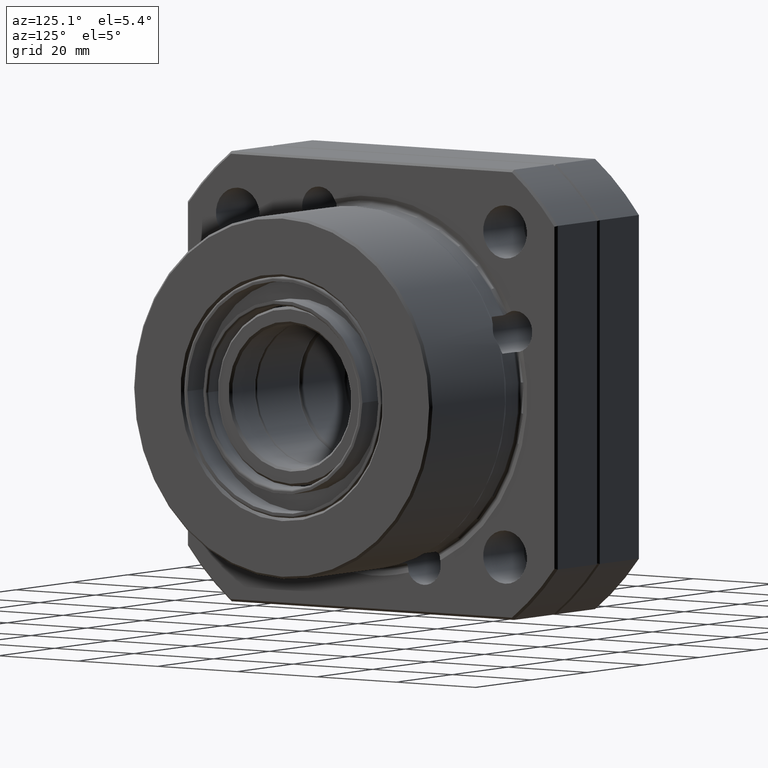
[diagram: clean part render]
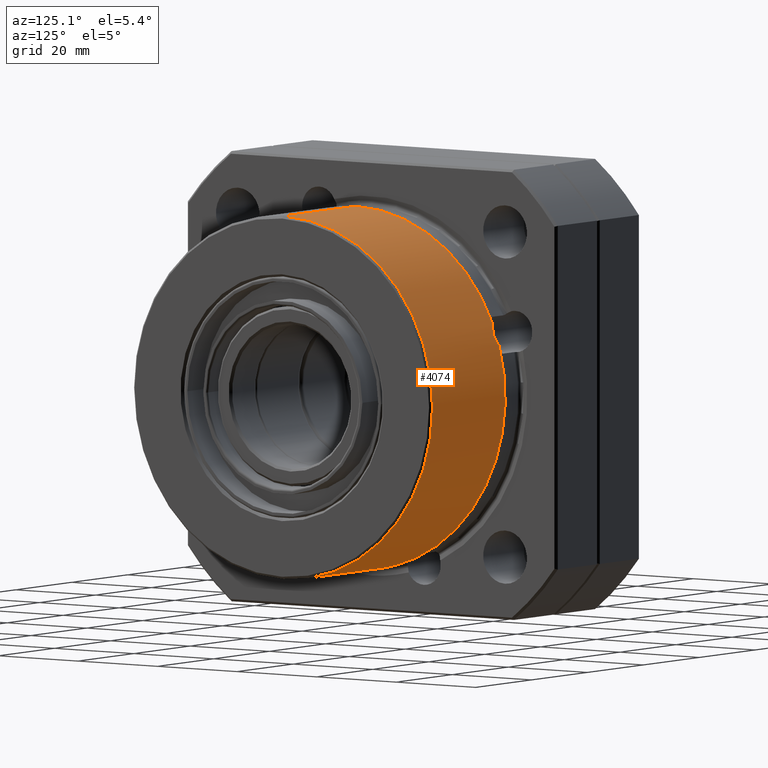
[diagram: same view with one face highlighted and labeled with its STEP entity id]
A machine part, auxiliary view. The second image highlights one B-rep face of the part: STEP entity #4074.
In plain terms, the highlighted cylindrical surface (partial cylindrical patch) has radius 37.5 mm, axis along (-1, -0, -0).
Its self-contained STEP definition (entity closure, byte-faithful):
#171 = VERTEX_POINT ( 'NONE', #4512 ) ;
#615 = EDGE_CURVE ( 'NONE', #616, #171, #6572, .T. ) ;
#616 = VERTEX_POINT ( 'NONE', #6627 ) ;
#926 = EDGE_CURVE ( 'NONE', #951, #958, #7631, .T. ) ;
#951 = VERTEX_POINT ( 'NONE', #7650 ) ;
#953 = EDGE_CURVE ( 'NONE', #616, #951, #7715, .T. ) ;
#954 = ORIENTED_EDGE ( 'NONE', *, *, #953, .F. ) ;
#957 = EDGE_CURVE ( 'NONE', #959, #958, #7703, .T. ) ;
#958 = VERTEX_POINT ( 'NONE', #7702 ) ;
#959 = VERTEX_POINT ( 'NONE', #7705 ) ;
#960 = ORIENTED_EDGE ( 'NONE', *, *, #957, .T. ) ;
#961 = ORIENTED_EDGE ( 'NONE', *, *, #926, .F. ) ;
#962 = ORIENTED_EDGE ( 'NONE', *, *, #964, .F. ) ;
#963 = ORIENTED_EDGE ( 'NONE', *, *, #3936, .T. ) ;
#964 = EDGE_CURVE ( 'NONE', #959, #3937, #7701, .T. ) ;
#965 = ORIENTED_EDGE ( 'NONE', *, *, #967, .T. ) ;
#966 = VERTEX_POINT ( 'NONE', #7743 ) ;
#967 = EDGE_CURVE ( 'NONE', #966, #4018, #7740, .T. ) ;
#3936 = EDGE_CURVE ( 'NONE', #4018, #3937, #13127, .T. ) ;
#3937 = VERTEX_POINT ( 'NONE', #13126 ) ;
#4018 = VERTEX_POINT ( 'NONE', #13284 ) ;
#4069 = EDGE_CURVE ( 'NONE', #966, #4071, #13370, .T. ) ;
#4070 = ORIENTED_EDGE ( 'NONE', *, *, #4069, .F. ) ;
#4071 = VERTEX_POINT ( 'NONE', #13365 ) ;
#4074 = ADVANCED_FACE ( 'NONE', ( #13361 ), #13364, .T. ) ;
#4085 = ORIENTED_EDGE ( 'NONE', *, *, #615, .T. ) ;
#4094 = ORIENTED_EDGE ( 'NONE', *, *, #4095, .T. ) ;
#4095 = EDGE_CURVE ( 'NONE', #171, #4071, #13438, .T. ) ;
#4102 = EDGE_LOOP ( 'NONE', ( #4085, #4094, #4070, #965, #963, #962, #960, #961, #954 ) ) ;
#4512 = CARTESIAN_POINT ( 'NONE',  ( 46.50000000000000000, 4.592273826833913900E-015, -37.50000000000000000 ) ) ;
#6572 = CIRCLE ( 'NONE', #6631, 37.50000000000000000 ) ;
#6627 = CARTESIAN_POINT ( 'NONE',  ( 46.50000000000000000, 0.0000000000000000000, 37.50000000000000000 ) ) ;
#6628 = DIRECTION ( 'NONE',  ( 0.0000000000000000000, 0.0000000000000000000, 1.000000000000000000 ) ) ;
#6629 = DIRECTION ( 'NONE',  ( -1.000000000000000000, -0.0000000000000000000, -0.0000000000000000000 ) ) ;
#6630 = CARTESIAN_POINT ( 'NONE',  ( 46.50000000000000000, 0.0000000000000000000, 0.0000000000000000000 ) ) ;
#6631 = AXIS2_PLACEMENT_3D ( 'NONE', #6630, #6629, #6628 ) ;
#7627 = DIRECTION ( 'NONE',  ( 0.0000000000000000000, 0.0000000000000000000, 1.000000000000000000 ) ) ;
#7628 = DIRECTION ( 'NONE',  ( -1.000000000000000000, -0.0000000000000000000, -0.0000000000000000000 ) ) ;
#7629 = CARTESIAN_POINT ( 'NONE',  ( 20.50000000000000400, 0.0000000000000000000, 0.0000000000000000000 ) ) ;
#7630 = AXIS2_PLACEMENT_3D ( 'NONE', #7629, #7628, #7627 ) ;
#7631 = CIRCLE ( 'NONE', #7630, 37.50000000000000000 ) ;
#7650 = CARTESIAN_POINT ( 'NONE',  ( 20.50000000000000400, 0.0000000000000000000, 37.50000000000000000 ) ) ;
#7683 = CARTESIAN_POINT ( 'NONE',  ( 20.50000000000129000, 34.36458577481649000, 15.01083756907921300 ) ) ;
#7684 = CARTESIAN_POINT ( 'NONE',  ( 20.70866283998751100, 34.51342734567651900, 14.67009183086581500 ) ) ;
#7685 = CARTESIAN_POINT ( 'NONE',  ( 20.91458920254795100, 34.65817090286548600, 14.32512983484525800 ) ) ;
#7686 = CARTESIAN_POINT ( 'NONE',  ( 21.18809316770768100, 34.87322613068326400, 13.78931245630402500 ) ) ;
#7687 = CARTESIAN_POINT ( 'NONE',  ( 21.27308730741152600, 34.94439532060203400, 13.60808046859218300 ) ) ;
#7688 = CARTESIAN_POINT ( 'NONE',  ( 21.37258735539135700, 35.05258107483619800, 13.32579133044572300 ) ) ;
#7689 = CARTESIAN_POINT ( 'NONE',  ( 21.40086775979204600, 35.08890802344230800, 13.22987814269311400 ) ) ;
#7690 = CARTESIAN_POINT ( 'NONE',  ( 21.44110858373306200, 35.16283063051298500, 13.03213274939910200 ) ) ;
#7691 = CARTESIAN_POINT ( 'NONE',  ( 21.45237518697612000, 35.19997776070658100, 12.93146762763182200 ) ) ;
#7692 = CARTESIAN_POINT ( 'NONE',  ( 21.45360449472478600, 35.30904804700194400, 12.63195485463021800 ) ) ;
#7693 = CARTESIAN_POINT ( 'NONE',  ( 21.40909280003535600, 35.38041791378176300, 12.43049995282427700 ) ) ;
#7694 = CARTESIAN_POINT ( 'NONE',  ( 21.27697833555198400, 35.51306655651202200, 12.04630252748786200 ) ) ;
#7695 = CARTESIAN_POINT ( 'NONE',  ( 21.19141158364530900, 35.57571110976348900, 11.85986297216955900 ) ) ;
#7696 = CARTESIAN_POINT ( 'NONE',  ( 20.91648679567774800, 35.75676013584698200, 11.30727143582630000 ) ) ;
#7697 = CARTESIAN_POINT ( 'NONE',  ( 20.70977599080054100, 35.86801230888024600, 10.94876402062302400 ) ) ;
#7698 = CARTESIAN_POINT ( 'NONE',  ( 20.50000000000000400, 35.97358037330569400, 10.59016124170520700 ) ) ;
#7699 = DIRECTION ( 'NONE',  ( -1.000000000000000000, -0.0000000000000000000, -0.0000000000000000000 ) ) ;
#7700 = AXIS2_PLACEMENT_3D ( 'NONE', #7704, #7699, #7744 ) ;
#7701 = CIRCLE ( 'NONE', #7700, 37.50000000000000000 ) ;
#7702 = CARTESIAN_POINT ( 'NONE',  ( 20.50000000000129000, 34.36458577481649000, 15.01083756907921300 ) ) ;
#7703 = B_SPLINE_CURVE_WITH_KNOTS ( 'NONE', 3,
 ( #7698, #7697, #7696, #7695, #7694, #7693, #7692, #7691, #7690, #7689, #7688, #7687, #7686, #7685, #7684, #7683 ),
 .UNSPECIFIED., .F., .F.,
 ( 4, 2, 2, 2, 2, 2, 2, 4 ),
 ( 4.084570154170579200E-007, 0.001285686829622205400, 0.001928326015925599600, 0.002570965202228994100, 0.002892284795380685100, 0.003213604388532376100, 0.003856243574835772800, 0.005141521947442563200 ),
 .UNSPECIFIED. ) ;
#7704 = CARTESIAN_POINT ( 'NONE',  ( 20.50000000000000400, 0.0000000000000000000, 0.0000000000000000000 ) ) ;
#7705 = CARTESIAN_POINT ( 'NONE',  ( 20.50000000000000400, 35.97358037330569400, 10.59016124170520700 ) ) ;
#7712 = DIRECTION ( 'NONE',  ( -1.000000000000000000, -0.0000000000000000000, -0.0000000000000000000 ) ) ;
#7713 = VECTOR ( 'NONE', #7712, 1000.000000000000000 ) ;
#7714 = CARTESIAN_POINT ( 'NONE',  ( -94.46891865289678900, 0.0000000000000000000, 37.50000000000000000 ) ) ;
#7715 = LINE ( 'NONE', #7714, #7713 ) ;
#7726 = CARTESIAN_POINT ( 'NONE',  ( 21.41310165367746200, 13.16777551803804500, -35.11210173012373300 ) ) ;
#7727 = CARTESIAN_POINT ( 'NONE',  ( 21.43832643169938000, 13.05583223896659500, -35.15408281063253100 ) ) ;
#7728 = CARTESIAN_POINT ( 'NONE',  ( 21.45271358265340200, 12.94066770323013000, -35.19664477440259300 ) ) ;
#7729 = CARTESIAN_POINT ( 'NONE',  ( 21.45287967961885300, 12.71293099737503800, -35.27954179743390700 ) ) ;
#7730 = CARTESIAN_POINT ( 'NONE',  ( 21.43893194118013700, 12.59880521844505600, -35.32045549319110500 ) ) ;
#7731 = CARTESIAN_POINT ( 'NONE',  ( 21.36335211630939700, 12.25852995236195200, -35.44060270540406100 ) ) ;
#7732 = CARTESIAN_POINT ( 'NONE',  ( 21.27442164516757800, 12.04373218240587900, -35.51405953822411700 ) ) ;
#7733 = CARTESIAN_POINT ( 'NONE',  ( 21.07600401011671200, 11.61974479954470100, -35.65503387404787400 ) ) ;
#7734 = CARTESIAN_POINT ( 'NONE',  ( 20.96543641844720100, 11.41198798997152000, -35.72202740163084700 ) ) ;
#7735 = CARTESIAN_POINT ( 'NONE',  ( 20.73755905960550500, 10.99948080928652900, -35.85119431054224700 ) ) ;
#7736 = CARTESIAN_POINT ( 'NONE',  ( 20.61963032375981100, 10.79466398951427000, -35.91337738402313600 ) ) ;
#7737 = CARTESIAN_POINT ( 'NONE',  ( 20.50000000000000400, 10.59016124170508500, -35.97358037330573000 ) ) ;
#7740 = B_SPLINE_CURVE_WITH_KNOTS ( 'NONE', 3,
 ( #7737, #7736, #7735, #7734, #7733, #7732, #7731, #7730, #7729, #7728, #7727, #7726 ),
 .UNSPECIFIED., .F., .F.,
 ( 4, 2, 2, 2, 2, 4 ),
 ( 4.084570144749889900E-007, 0.0007333725452767203000, 0.001466336633538965600, 0.002199300721801210800, 0.002565782765932330500, 0.002932264810063450700 ),
 .UNSPECIFIED. ) ;
#7743 = CARTESIAN_POINT ( 'NONE',  ( 20.50000000000000400, 10.59016124170508500, -35.97358037330573000 ) ) ;
#7744 = DIRECTION ( 'NONE',  ( 0.0000000000000000000, 0.0000000000000000000, 1.000000000000000000 ) ) ;
#13117 = CARTESIAN_POINT ( 'NONE',  ( 20.50000000000000400, 15.01083756908119300, -34.36458577481563000 ) ) ;
#13118 = CARTESIAN_POINT ( 'NONE',  ( 20.67933464001684700, 14.71798468591425800, -34.49250720793465800 ) ) ;
#13119 = CARTESIAN_POINT ( 'NONE',  ( 20.85568882383209300, 14.42210868362820100, -34.61734577407200000 ) ) ;
#13120 = CARTESIAN_POINT ( 'NONE',  ( 21.09986181552214300, 13.96574953937123300, -34.80279876151576000 ) ) ;
#13121 = CARTESIAN_POINT ( 'NONE',  ( 21.17758636417505300, 13.81182096116056200, -34.86419567493452800 ) ) ;
#13122 = CARTESIAN_POINT ( 'NONE',  ( 21.31497225536892200, 13.49714891329834600, -34.98721923124968200 ) ) ;
#13123 = CARTESIAN_POINT ( 'NONE',  ( 21.37508613437960000, 13.33648193369388900, -35.04883328134547300 ) ) ;
#13124 = CARTESIAN_POINT ( 'NONE',  ( 21.41310165367746200, 13.16777551803804500, -35.11210173012373300 ) ) ;
#13126 = CARTESIAN_POINT ( 'NONE',  ( 20.50000000000000400, 15.01083756908119300, -34.36458577481563000 ) ) ;
#13127 = B_SPLINE_CURVE_WITH_KNOTS ( 'NONE', 3,
 ( #13124, #13123, #13122, #13121, #13120, #13119, #13118, #13117 ),
 .UNSPECIFIED., .F., .F.,
 ( 4, 2, 2, 4 ),
 ( 0.002932264810063450700, 0.003484579094408652600, 0.004036893378753854400, 0.005141521947444258100 ),
 .UNSPECIFIED. ) ;
#13284 = CARTESIAN_POINT ( 'NONE',  ( 21.41310165367746200, 13.16777551803804500, -35.11210173012373300 ) ) ;
#13361 = FACE_OUTER_BOUND ( 'NONE', #4102, .T. ) ;
#13363 = AXIS2_PLACEMENT_3D ( 'NONE', #13418, #13417, #13416 ) ;
#13364 = CYLINDRICAL_SURFACE ( 'NONE', #13363, 37.50000000000000000 ) ;
#13365 = CARTESIAN_POINT ( 'NONE',  ( 20.50000000000000400, 0.0000000000000000000, -37.50000000000000000 ) ) ;
#13366 = DIRECTION ( 'NONE',  ( 0.0000000000000000000, 0.0000000000000000000, 1.000000000000000000 ) ) ;
#13367 = DIRECTION ( 'NONE',  ( -1.000000000000000000, -0.0000000000000000000, -0.0000000000000000000 ) ) ;
#13368 = CARTESIAN_POINT ( 'NONE',  ( 20.50000000000000400, 0.0000000000000000000, 0.0000000000000000000 ) ) ;
#13369 = AXIS2_PLACEMENT_3D ( 'NONE', #13368, #13367, #13366 ) ;
#13370 = CIRCLE ( 'NONE', #13369, 37.50000000000000000 ) ;
#13416 = DIRECTION ( 'NONE',  ( 0.0000000000000000000, 0.0000000000000000000, 1.000000000000000000 ) ) ;
#13417 = DIRECTION ( 'NONE',  ( -1.000000000000000000, -0.0000000000000000000, -0.0000000000000000000 ) ) ;
#13418 = CARTESIAN_POINT ( 'NONE',  ( -94.46891865289678900, 0.0000000000000000000, 0.0000000000000000000 ) ) ;
#13435 = DIRECTION ( 'NONE',  ( -1.000000000000000000, -0.0000000000000000000, -0.0000000000000000000 ) ) ;
#13436 = VECTOR ( 'NONE', #13435, 1000.000000000000000 ) ;
#13437 = CARTESIAN_POINT ( 'NONE',  ( -94.46891865289678900, 4.592273826833913900E-015, -37.50000000000000000 ) ) ;
#13438 = LINE ( 'NONE', #13437, #13436 ) ;